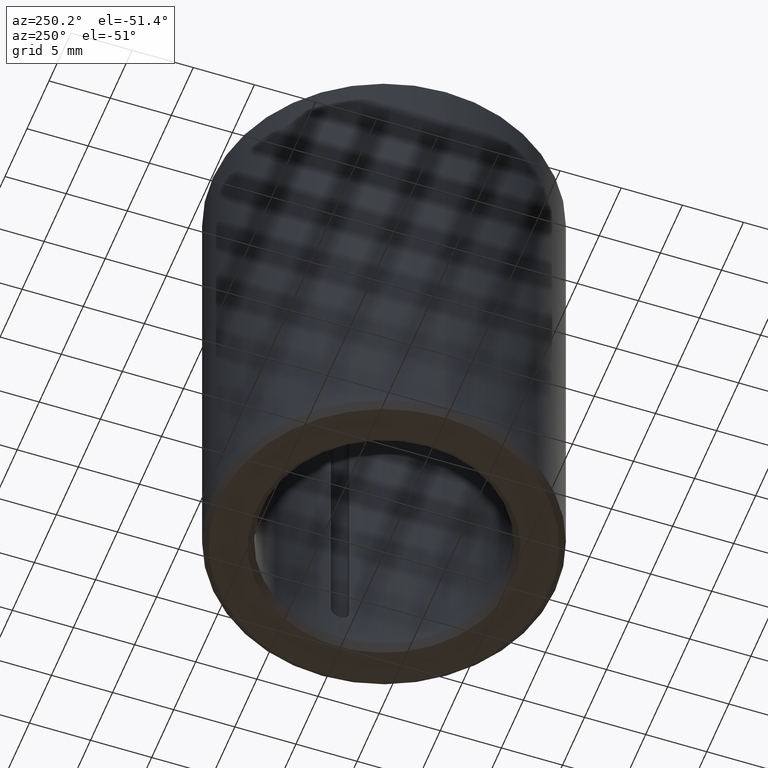
[diagram: clean part render]
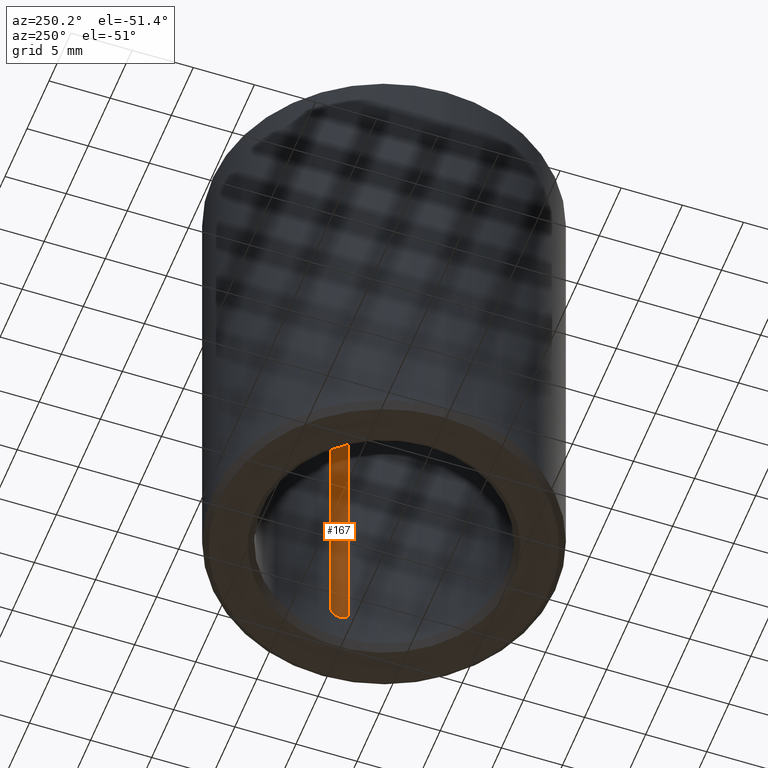
[diagram: same view with one face highlighted and labeled with its STEP entity id]
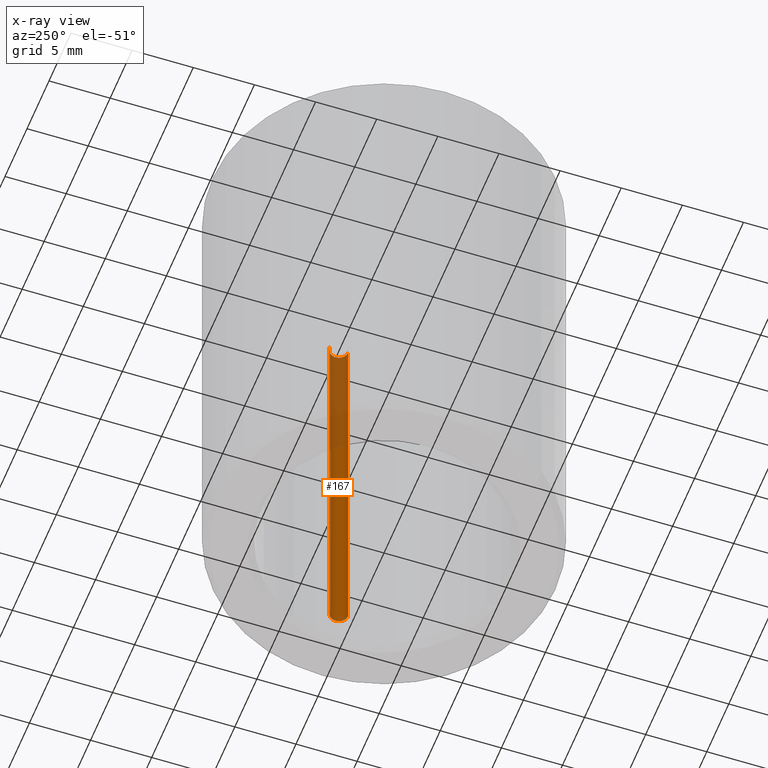
[diagram: x-ray of the same camera — body ghosted, the highlighted face saturated]
A machine part, auxiliary view. The second image highlights one B-rep face of the part: STEP entity #167.
The next image is the same camera in x-ray: the body ghosted, the highlighted face saturated — about 35% of this face is hidden behind the body in this view.
In plain terms, the highlighted cylindrical surface (edge-blend (fillet) strip) has radius 0.75 mm, axis along (-0, 0, -1).
Its self-contained STEP definition (entity closure, byte-faithful):
#167=ADVANCED_FACE('',(#207),#208,.F.);
#207=FACE_OUTER_BOUND('',#247,.T.);
#208=CYLINDRICAL_SURFACE('',#248,0.00075);
#247=EDGE_LOOP('',(#331,#332,#333,#334));
#248=AXIS2_PLACEMENT_3D('',#335,#336,#337);
#331=ORIENTED_EDGE('',*,*,#343,.F.);
#332=ORIENTED_EDGE('',*,*,#357,.T.);
#333=ORIENTED_EDGE('',*,*,#359,.F.);
#334=ORIENTED_EDGE('',*,*,#358,.F.);
#335=CARTESIAN_POINT('',(-1.3010426069826E-018,-0.01025,0.03625));
#336=DIRECTION('',(1.23432247329119E-016,0.0,-1.0));
#337=DIRECTION('',(-1.0,0.0,-1.23432247329119E-016));
#343=EDGE_CURVE('',#368,#360,#371,.T.);
#357=EDGE_CURVE('',#368,#373,#395,.T.);
#358=EDGE_CURVE('',#360,#363,#396,.T.);
#359=EDGE_CURVE('',#363,#373,#397,.T.);
#360=VERTEX_POINT('',#398);
#363=VERTEX_POINT('',#402);
#368=VERTEX_POINT('',#421);
#371=LINE('',#425,#426);
#373=VERTEX_POINT('',#429);
#395=CIRCLE('',#466,0.00075);
#396=CIRCLE('',#467,0.00075);
#397=LINE('',#468,#469);
#398=CARTESIAN_POINT('',(-0.00075,-0.01025,0.00375));
#402=CARTESIAN_POINT('',(0.00075,-0.01025,0.00375));
#421=CARTESIAN_POINT('',(-0.00075,-0.01025,0.03625));
#425=CARTESIAN_POINT('',(-0.00075,-0.01025,0.03625));
#426=VECTOR('',#476,1.0);
#429=CARTESIAN_POINT('',(0.00075,-0.01025,0.03625));
#466=AXIS2_PLACEMENT_3D('',#507,#508,#509);
#467=AXIS2_PLACEMENT_3D('',#510,#511,#512);
#468=CARTESIAN_POINT('',(0.00075,-0.01025,0.00375));
#469=VECTOR('',#513,1.0);
#476=DIRECTION('',(1.23432247329119E-016,0.0,-1.0));
#507=CARTESIAN_POINT('',(-1.3010426069826E-018,-0.01025,0.03625));
#508=DIRECTION('',(4.62592926927149E-014,1.20370621524202E-028,1.0));
#509=DIRECTION('',(1.0,0.0,-4.62592926927149E-014));
#510=CARTESIAN_POINT('',(2.71050543121376E-018,-0.01025,0.00375));
#511=DIRECTION('',(0.0,5.55111512312578E-014,1.0));
#512=DIRECTION('',(0.0,-1.0,5.55111512312578E-014));
#513=DIRECTION('',(0.0,0.0,1.0));